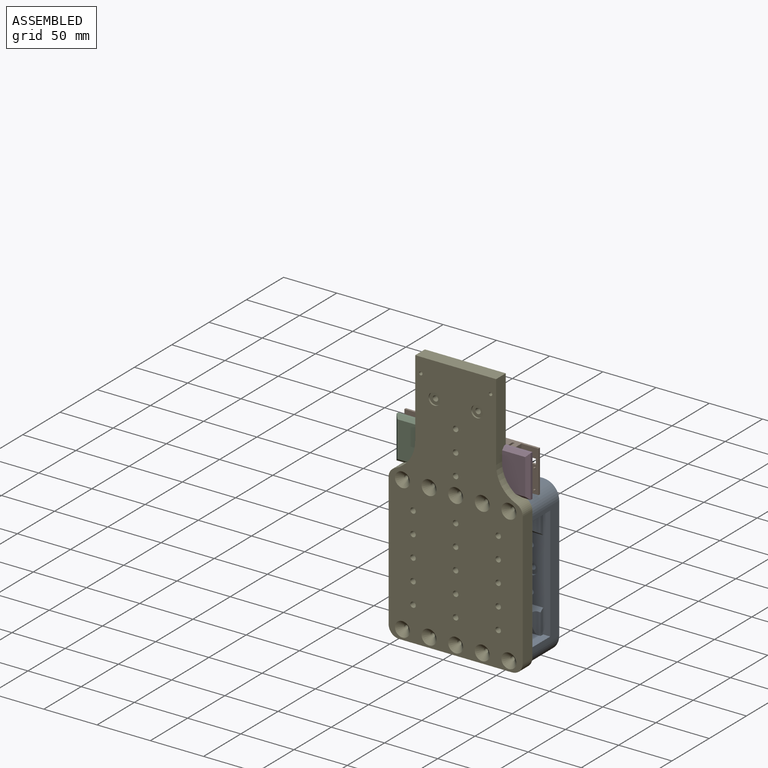
[diagram: assembled view]
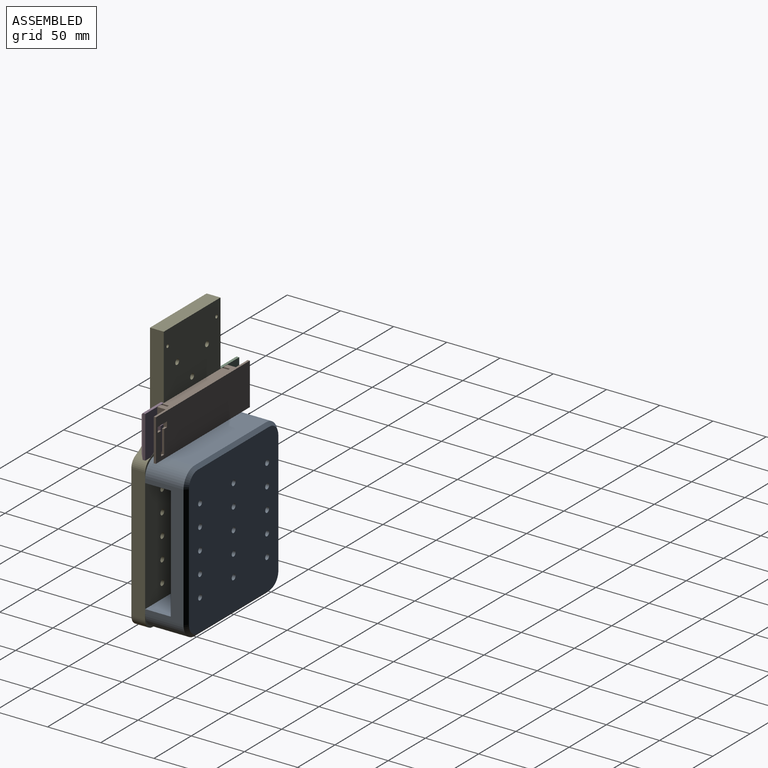
[diagram: assembled view, second angle]
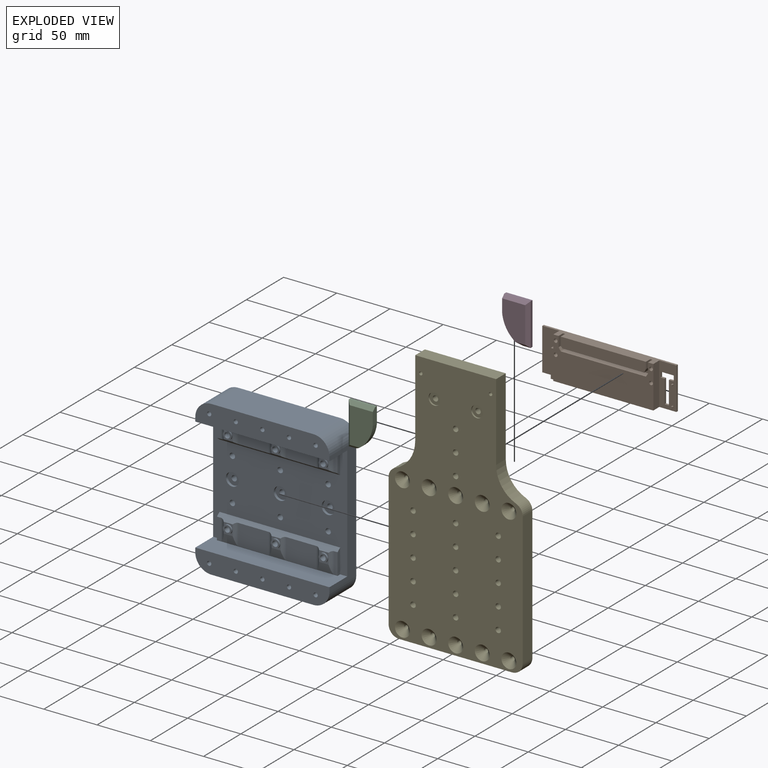
[diagram: exploded view]
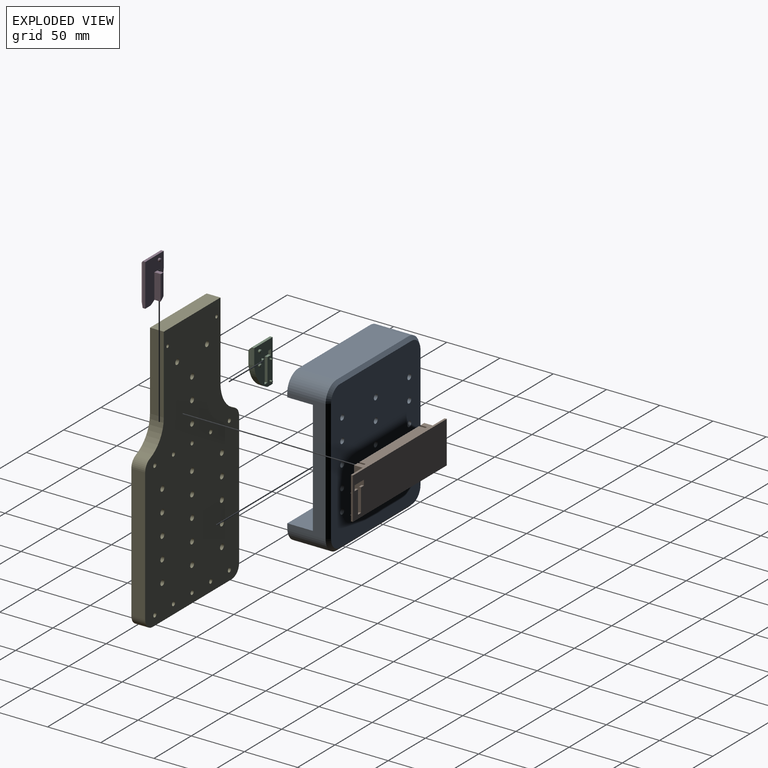
[diagram: exploded view, second angle]
ASSEMBLY  parts=5 mates=3
PART A: 109 faces, bbox 126x39x145 mm
  f0: cylinder r=2.55mm len=12.5mm, axis (0,1,0), area 200.3mm2, adj f41,f108
  f1: cylinder r=2.55mm len=12.5mm, axis (0,1,0), area 200.3mm2, adj f41,f106
  f2: cylinder r=2.55mm len=12.5mm, axis (0,1,0), area 200.3mm2, adj f41,f104
  f3: plane 9.42x8.94mm, normal (0,1,0), area 33.9mm2, adj f15,f16,f57,f78,f80
  f4: plane 9.42x8.62mm, normal (0,1,0), area 30.9mm2, adj f15,f16,f59,f77,f81
  f5: plane 9.42x8.62mm, normal (0,1,0), area 30.9mm2, adj f15,f16,f58,f79,f82
  f6: plane 10.08x8.62mm, normal (0,1,0), area 36.6mm2, adj f13,f14,f61,f73,f76
  f7: plane 10.08x8.94mm, normal (0,1,0), area 39.8mm2, adj f13,f14,f60,f71,f74
  f8: plane 10.08x8.62mm, normal (0,1,0), area 36.6mm2, adj f13,f14,f62,f72,f75
  f9: plane 22.77x3.5mm, normal (1,0,0), area 74.6mm2, adj f15,f16,f23,f24,f64
  f10: plane 22.77x3.5mm, normal (-1,0,0), area 74.6mm2, adj f15,f16,f23,f24,f65
  f11: plane 22.77x3.5mm, normal (1,0,0), area 75mm2, adj f13,f14,f24,f55,f68
  f12: plane 22.77x3.5mm, normal (-1,0,0), area 75mm2, adj f13,f14,f24,f55,f67
  f13: plane 113.34x8.46mm, normal (0,0.97,-0.24), area 318.5mm2, adj f6,f7,f8,f11,f12,f55,f67,f68
  f14: plane 113.34x5.5mm, normal (0,0.61,0.79), area 584.8mm2, adj f6,f7,f8,f11,f12,f24,f67,f68
  f15: plane 113.34x5.5mm, normal (0,0.62,-0.78), area 593.5mm2, adj f3,f4,f5,f9,f10,f24,f63,f64
  f16: plane 113.34x8.95mm, normal (0,0.97,0.25), area 417.6mm2, adj f3,f4,f5,f9,f10,f23,f63,f64
  f17: plane 8x8mm, normal (0,1,0), area 29.8mm2, adj f38,f60
  f18: plane 8x8mm, normal (0,1,0), area 29.8mm2, adj f35,f61
  f19: plane 8x8mm, normal (0,1,0), area 29.8mm2, adj f30,f62
  f20: plane 8x8mm, normal (0,1,0), area 29.8mm2, adj f32,f57
  f21: plane 8x8mm, normal (0,1,0), area 29.8mm2, adj f31,f58
  f22: plane 8x8mm, normal (0,1,0), area 29.8mm2, adj f40,f59
  f23: plane 126x24mm, normal (0,0,-1), area 2666.4mm2, adj f9,f10,f16,f24,f25,f27,f54
  f24: plane 126x107.02mm, normal (0,1,0), area 7849.3mm2, adj f9,f10,f11,f12,f14,f15,f23,f25
  f25: plane 115x36mm, normal (-1,0,0), area 1571.6mm2, adj f23,f24,f42,f45,f53,f54,f55,f56
  f26: plane 96x36mm, normal (0,0,-1), area 3456mm2, adj f42,f43,f49,f56
  f27: plane 115x36mm, normal (1,0,0), area 1571.6mm2, adj f23,f24,f43,f44,f46,f54,f55,f56
  f28: cylinder r=2.55mm len=15mm, axis (0,1,0), area 240.3mm2, adj f24,f41
  f29: cylinder r=2.55mm len=15mm, axis (0,1,0), area 240.3mm2, adj f24,f41
  f30: cylinder r=2.55mm len=22mm, axis (0,1,0), area 352.5mm2, adj f19,f41
  f31: cylinder r=2.55mm len=22mm, axis (0,1,0), area 352.5mm2, adj f21,f41
  f32: cylinder r=2.55mm len=22mm, axis (0,1,0), area 352.5mm2, adj f20,f41
  f33: cylinder r=2.55mm len=15mm, axis (0,1,0), area 240.3mm2, adj f24,f41
  f34: cylinder r=2.55mm len=15mm, axis (0,1,0), area 240.3mm2, adj f24,f41
  f35: cylinder r=2.55mm len=22mm, axis (0,1,0), area 352.5mm2, adj f18,f41
  f36: cylinder r=2.55mm len=15mm, axis (0,1,0), area 240.3mm2, adj f24,f41
  f37: cylinder r=2.55mm len=15mm, axis (0,1,0), area 240.3mm2, adj f24,f41
  f38: cylinder r=2.55mm len=22mm, axis (0,1,0), area 352.5mm2, adj f17,f41
  f39: plane 96x36mm, normal (0,0,1), area 3456mm2, adj f44,f45,f50,f54
  f40: cylinder r=2.55mm len=22mm, axis (0,1,0), area 352.5mm2, adj f22,f41
  f41: plane 139x120mm, normal (0,-1,0), area 16250mm2, adj f0,f1,f2,f28,f29,f30,f31,f32
  f42: cylinder r=15mm len=36mm, axis (0,-1,0), area 848.2mm2, adj f25,f26,f51,f56
  f43: cylinder r=15mm len=36mm, axis (0,1,0), area 848.2mm2, adj f26,f27,f47,f56
  f44: cylinder r=15mm len=36mm, axis (0,-1,0), area 848.2mm2, adj f27,f39,f48,f54
  f45: cylinder r=15mm len=36mm, axis (0,1,0), area 848.2mm2, adj f25,f39,f52,f54
  f46: plane 115x3mm, normal (0.71,-0.71,0), area 487.9mm2, adj f27,f41,f47,f48
  f47: cone r=12mm half-angle=45deg, axis (0,1,0), area 90mm2, adj f41,f43,f46,f49
  f48: cone r=12mm half-angle=45deg, axis (0,1,0), area 90mm2, adj f41,f44,f46,f50
  f49: plane 96x3mm, normal (0,-0.71,-0.71), area 407.3mm2, adj f26,f41,f47,f51
  f50: plane 96x3mm, normal (0,-0.71,0.71), area 407.3mm2, adj f39,f41,f48,f52
  f51: cone r=12mm half-angle=45deg, axis (0,1,0), area 90mm2, adj f41,f42,f49,f53
  f52: cone r=12mm half-angle=45deg, axis (0,1,0), area 90mm2, adj f41,f45,f50,f53
  f53: plane 115x3mm, normal (-0.71,-0.71,0), area 487.9mm2, adj f25,f41,f51,f52
  f54: plane 126x18.99mm, normal (0,1,0), area 2233.7mm2, adj f23,f25,f27,f39,f44,f45,f93,f95
  f55: plane 126x24mm, normal (0,0,1), area 2636.7mm2, adj f11,f12,f13,f24,f25,f27,f56
  f56: plane 126x18.99mm, normal (0,1,0), area 2233.7mm2, adj f25,f26,f27,f42,f43,f55,f83,f85
  f57: cylinder r=4mm len=8mm, axis (0,1,0), area 37.7mm2, adj f3,f20
  f58: cylinder r=4mm len=8mm, axis (0,1,0), area 37.7mm2, adj f5,f21
  f59: cylinder r=4mm len=8mm, axis (0,1,0), area 37.7mm2, adj f4,f22
  f60: cylinder r=4mm len=8mm, axis (0,1,0), area 37.7mm2, adj f7,f17
  f61: cylinder r=4mm len=8mm, axis (0,1,0), area 37.7mm2, adj f6,f18
  f62: cylinder r=4mm len=8mm, axis (0,1,0), area 37.7mm2, adj f8,f19
  f63: plane 28.27x18.65mm, normal (0,1,0), area 527.4mm2, adj f15,f16,f81,f82
  f64: plane 18.65x3.65mm, normal (0,1,0), area 68.2mm2, adj f9,f15,f16,f77
  f65: plane 18.65x3.08mm, normal (0,1,0), area 57.5mm2, adj f10,f15,f16,f78
  f66: plane 28.17x18.65mm, normal (0,1,0), area 525.4mm2, adj f15,f16,f79,f80
  f67: plane 19.74x3.08mm, normal (0,1,0), area 60.8mm2, adj f12,f13,f14,f71
  f68: plane 19.74x3.65mm, normal (0,1,0), area 72.1mm2, adj f11,f13,f14,f72
  f69: plane 28.17x19.74mm, normal (0,1,0), area 556mm2, adj f13,f14,f73,f74
  f70: plane 28.27x19.74mm, normal (0,1,0), area 558.1mm2, adj f13,f14,f75,f76
  f71: cylinder r=5mm len=19.74mm, axis (0,0,1), area 76.2mm2, adj f7,f13,f14,f67
  f72: cylinder r=5mm len=19.74mm, axis (0,0,1), area 76.2mm2, adj f8,f13,f14,f68
  f73: cylinder r=5mm len=19.74mm, axis (0,0,1), area 76.2mm2, adj f6,f13,f14,f69
  f74: cylinder r=5mm len=19.74mm, axis (0,0,1), area 76.2mm2, adj f7,f13,f14,f69
  f75: cylinder r=5mm len=19.74mm, axis (0,0,1), area 76.2mm2, adj f8,f13,f14,f70
  f76: cylinder r=5mm len=19.74mm, axis (0,0,1), area 76.2mm2, adj f6,f13,f14,f70
  f77: cylinder r=5mm len=18.65mm, axis (0,0,1), area 71.8mm2, adj f4,f15,f16,f64
  f78: cylinder r=5mm len=18.65mm, axis (0,0,1), area 71.8mm2, adj f3,f15,f16,f65
  f79: cylinder r=5mm len=18.65mm, axis (0,0,1), area 71.8mm2, adj f5,f15,f16,f66
  f80: cylinder r=5mm len=18.65mm, axis (0,0,1), area 71.8mm2, adj f3,f15,f16,f66
  f81: cylinder r=5mm len=18.65mm, axis (0,0,1), area 71.8mm2, adj f4,f15,f16,f63
  f82: cylinder r=5mm len=18.65mm, axis (0,0,1), area 71.8mm2, adj f5,f15,f16,f63
  f83: cylinder r=2mm len=30mm, axis (0,1,0), area 377mm2, adj f56,f84
  f84: plane 4x4mm, normal (0,1,0), area 12.6mm2, adj f83
  f85: cylinder r=2mm len=30mm, axis (0,1,0), area 377mm2, adj f56,f86
  f86: plane 4x4mm, normal (0,1,0), area 12.6mm2, adj f85
  f87: cylinder r=2mm len=30mm, axis (0,1,0), area 377mm2, adj f56,f88
  f88: plane 4x4mm, normal (0,1,0), area 12.6mm2, adj f87
  f89: cylinder r=2mm len=30mm, axis (0,1,0), area 377mm2, adj f56,f90
  f90: plane 4x4mm, normal (0,1,0), area 12.6mm2, adj f89
  f91: cylinder r=2mm len=30mm, axis (0,1,0), area 377mm2, adj f56,f92
  f92: plane 4x4mm, normal (0,1,0), area 12.6mm2, adj f91
  f93: cylinder r=2mm len=30mm, axis (0,1,0), area 377mm2, adj f54,f94
  f94: plane 4x4mm, normal (0,1,0), area 12.6mm2, adj f93
  f95: cylinder r=2mm len=30mm, axis (0,1,0), area 377mm2, adj f54,f96
  f96: plane 4x4mm, normal (0,1,0), area 12.6mm2, adj f95
  f97: cylinder r=2mm len=30mm, axis (0,1,0), area 377mm2, adj f54,f98
  f98: plane 4x4mm, normal (0,1,0), area 12.6mm2, adj f97
  f99: cylinder r=2mm len=30mm, axis (0,1,0), area 377mm2, adj f54,f100
  f100: plane 4x4mm, normal (0,1,0), area 12.6mm2, adj f99
  f101: cylinder r=2mm len=30mm, axis (0,1,0), area 377mm2, adj f54,f102
  f102: plane 4x4mm, normal (0,1,0), area 12.6mm2, adj f101
  f103: cylinder r=6.1mm len=12.2mm, axis (0,1,0), area 95.8mm2, adj f24,f104
  f104: plane 12.2x12.2mm, normal (0,1,0), area 96.5mm2, adj f2,f103
  f105: cylinder r=6.1mm len=12.2mm, axis (0,1,0), area 95.8mm2, adj f24,f106
  f106: plane 12.2x12.2mm, normal (0,1,0), area 96.5mm2, adj f1,f105
  f107: cylinder r=6.1mm len=12.2mm, axis (0,1,0), area 95.8mm2, adj f24,f108
  f108: plane 12.2x12.2mm, normal (0,1,0), area 96.5mm2, adj f0,f107
PART B: 45 faces, bbox 10x126x39.5 mm
  f0: plane 94x39.5mm, normal (1,0,0), area 2626.1mm2, adj f1,f4,f8,f22,f26,f27,f33,f34
  f1: plane 126x10mm, normal (0,0,1), area 980mm2, adj f0,f2,f3,f4,f5,f6,f7,f9
  f2: plane 80x9.55mm, normal (1,0,0), area 760.2mm2, adj f1,f28,f29,f30,f31,f32
  f3: plane 39.5x16mm, normal (1,0,0), area 532.4mm2, adj f1,f4,f7,f8,f23,f24
  f4: plane 39.5x8mm, normal (0,-1,0), area 161.4mm2, adj f0,f1,f3,f8,f23,f25
  f5: plane 39.5x16mm, normal (1,0,0), area 479.9mm2, adj f1,f8,f9,f10,f11,f12,f13,f14
  f6: plane 126x39.5mm, normal (-1,0,0), area 4828.4mm2, adj f1,f7,f8,f9,f10,f11,f12,f13
  f7: plane 39.5x2mm, normal (0,-1,0), area 79mm2, adj f1,f3,f6,f8
  f8: plane 126x10mm, normal (0,0,-1), area 1026.4mm2, adj f0,f3,f4,f5,f6,f7,f9,f22
  f9: plane 39.5x2mm, normal (0,1,0), area 79mm2, adj f1,f5,f6,f8
  f10: plane 21.68x2mm, normal (0,1,0), area 43.4mm2, adj f5,f6,f11,f17
  f11: plane 4x2mm, normal (0,0,1), area 8mm2, adj f5,f6,f10,f12
  f12: plane 21.68x2mm, normal (0,-1,0), area 43.4mm2, adj f5,f6,f11,f13
  f13: plane 4.59x2mm, normal (0,0,1), area 9.2mm2, adj f5,f6,f12,f14
  f14: plane 5x2mm, normal (0,-1,0), area 10mm2, adj f5,f6,f13,f15
  f15: plane 12.37x2mm, normal (0,0,-1), area 24.7mm2, adj f5,f6,f14,f16
  f16: plane 5x2mm, normal (0,1,0), area 10mm2, adj f5,f6,f15,f17
  f17: plane 3.78x2mm, normal (0,0,1), area 7.6mm2, adj f5,f6,f10,f16
  f18: cylinder r=0.75mm len=2mm, axis (-1,0,0), area 9.4mm2, adj f5,f19
  f19: plane 1.5x1.5mm, normal (1,0,0), area 1.8mm2, adj f18
  f20: cylinder r=0.75mm len=2mm, axis (-1,0,0), area 9.4mm2, adj f5,f21
  f21: plane 1.5x1.5mm, normal (1,0,0), area 1.8mm2, adj f20
  f22: plane 39.5x8mm, normal (0,1,0), area 316mm2, adj f0,f1,f5,f8
  f23: plane 5.9x3.8mm, normal (0,0,1), area 22.4mm2, adj f3,f4,f24,f25
  f24: plane 26.2x5.9mm, normal (0,-1,0), area 154.6mm2, adj f3,f8,f23,f25
  f25: plane 26.2x3.8mm, normal (1,0,0), area 99.6mm2, adj f4,f8,f23,f24
  f26: plane 6x3mm, normal (0,-0.83,0.55), area 21.6mm2, adj f0,f27,f35,f36
  f27: plane 9.55x6mm, normal (0,-1,0), area 57.3mm2, adj f0,f1,f26,f36
  f28: plane 6.28x6mm, normal (0,1,0), area 37.7mm2, adj f1,f2,f29,f36
  f29: plane 6x3.28mm, normal (0,0.89,-0.45), area 22mm2, adj f2,f28,f30,f36
  f30: plane 76.85x6mm, normal (0,0,-1), area 461.1mm2, adj f2,f29,f31,f36
  f31: plane 6x1.72mm, normal (0,-0.76,-0.65), area 13.7mm2, adj f2,f30,f32,f36
  f32: plane 7.83x6mm, normal (0,-1,0), area 47mm2, adj f1,f2,f31,f36
  f33: plane 9.55x6mm, normal (0,1,0), area 57.3mm2, adj f0,f1,f34,f36
  f34: plane 6x3mm, normal (0,0.83,0.55), area 21.6mm2, adj f0,f33,f35,f36
  f35: plane 80x6mm, normal (0,0,1), area 480mm2, adj f0,f26,f34,f36
  f36: plane 84x12.55mm, normal (1,0,0), area 288.2mm2, adj f1,f26,f27,f28,f29,f30,f31,f32
  f37: cylinder r=1.75mm len=4mm, axis (1,0,0), area 44mm2, adj f0,f38
  f38: plane 3.5x3.5mm, normal (1,0,0), area 9.6mm2, adj f37
  f39: cylinder r=1.75mm len=4mm, axis (1,0,0), area 44mm2, adj f0,f40
  f40: plane 3.5x3.5mm, normal (1,0,0), area 9.6mm2, adj f39
  f41: cylinder r=1.75mm len=4mm, axis (1,0,0), area 44mm2, adj f0,f42
  f42: plane 3.5x3.5mm, normal (1,0,0), area 9.6mm2, adj f41
  f43: cylinder r=1.75mm len=4mm, axis (1,0,0), area 44mm2, adj f0,f44
  f44: plane 3.5x3.5mm, normal (1,0,0), area 9.6mm2, adj f43
PART C: 29 faces, bbox 7.5x24.7x39.7 mm
  f0: cylinder r=30mm len=24.84mm, axis (-1,0,0), area 166.4mm2, adj f1,f2,f5,f6,f7
  f1: plane 14.87x5.5mm, normal (0,1,0), area 77.3mm2, adj f0,f2,f3,f6,f8
  f2: plane 33.72x21.72mm, normal (1,0,0), area 642.9mm2, adj f0,f1,f3,f4,f5
  f3: plane 24.72x3mm, normal (0.71,0,0.71), area 98.5mm2, adj f1,f2,f4,f8
  f4: plane 39.72x3mm, normal (0.71,-0.71,0), area 155.8mm2, adj f2,f3,f5,f9
  f5: plane 12.26x3mm, normal (0.71,0,-0.71), area 35.4mm2, adj f0,f2,f4,f7
  f6: plane 39.72x24.72mm, normal (-1,0,0), area 679.6mm2, adj f0,f1,f7,f8,f9,f10,f11,f12
  f7: plane 7x2.5mm, normal (0,0,-1), area 17.5mm2, adj f0,f5,f6,f9
  f8: plane 24.72x2.5mm, normal (0,0,1), area 61.8mm2, adj f1,f3,f6,f9
  f9: plane 39.72x2.5mm, normal (0,-1,0), area 99.3mm2, adj f4,f6,f7,f8
  f10: plane 5.02x2.5mm, normal (0,1,0), area 12.6mm2, adj f6,f11,f17,f28
  f11: plane 12.38x2.5mm, normal (0,0,-1), area 31mm2, adj f6,f10,f12,f28
  f12: plane 5.02x2.5mm, normal (0,-1,0), area 12.6mm2, adj f6,f11,f13,f28
  f13: plane 3.77x2.5mm, normal (0,0,1), area 9.4mm2, adj f6,f12,f14,f28
  f14: plane 21.71x2.5mm, normal (0,-1,0), area 54.3mm2, adj f6,f13,f15,f28
  f15: plane 4.05x2.5mm, normal (0,0,1), area 10.1mm2, adj f6,f14,f16,f28
  f16: plane 21.71x2.5mm, normal (0,1,0), area 54.3mm2, adj f6,f15,f17,f28
  f17: plane 4.56x2.5mm, normal (0,0,1), area 11.4mm2, adj f6,f10,f16,f28
  f18: cylinder r=0.74mm len=2mm, axis (1,0,0), area 9.4mm2, adj f6,f19
  f19: plane 1.49x1.49mm, normal (-1,0,0), area 1.7mm2, adj f18
  f20: cylinder r=0.79mm len=2mm, axis (1,0,0), area 9.9mm2, adj f6,f21
  f21: plane 1.58x1.58mm, normal (-1,0,0), area 2mm2, adj f20
  f22: cylinder r=1.5mm len=3mm, axis (1,0,0), area 14.1mm2, adj f6,f27
  f23: plane 2x2mm, normal (-1,0,0), area 3.1mm2, adj f27
  f24: cylinder r=1.5mm len=3mm, axis (1,0,0), area 14.1mm2, adj f6,f26
  f25: plane 2x2mm, normal (-1,0,0), area 3.1mm2, adj f26
  f26: torus R=1mm, axis (-1,0,0), area 6.5mm2, adj f24,f25
  f27: torus R=1mm, axis (-1,0,0), area 6.5mm2, adj f22,f23
  f28: plane 26.74x12.38mm, normal (-1,0,0), area 150.2mm2, adj f10,f11,f12,f13,f14,f15,f16,f17
PART D: 20 faces, bbox 11.4x24.7x39.7 mm
  f0: cylinder r=30mm len=24.84mm, axis (-1,0,0), area 195.6mm2, adj f1,f2,f5,f6,f8,f11,f12,f13
  f1: plane 14.87x5.5mm, normal (0,-1,0), area 77.3mm2, adj f0,f2,f3,f6,f7
  f2: plane 33.72x21.72mm, normal (1,0,0), area 642.9mm2, adj f0,f1,f3,f4,f5
  f3: plane 24.72x3mm, normal (0.71,0,0.71), area 98.5mm2, adj f1,f2,f4,f7
  f4: plane 39.72x3mm, normal (0.71,0.71,0), area 155.8mm2, adj f2,f3,f5,f9
  f5: plane 12.26x3mm, normal (0.71,0,-0.71), area 35.4mm2, adj f0,f2,f4,f8
  f6: plane 39.72x24.72mm, normal (-1,0,0), area 750.8mm2, adj f0,f1,f7,f8,f9,f10,f11,f12
  f7: plane 24.72x2.5mm, normal (0,0,1), area 61.8mm2, adj f1,f3,f6,f9
  f8: plane 7x2.5mm, normal (0,0,-1), area 17.5mm2, adj f0,f5,f6,f9
  f9: plane 39.72x2.5mm, normal (0,1,0), area 99.3mm2, adj f4,f6,f7,f8
  f10: plane 5.9x3.77mm, normal (0,0,1), area 22.3mm2, adj f6,f11,f12,f13
  f11: plane 23.42x5.9mm, normal (0,1,0), area 138.2mm2, adj f0,f6,f10,f13
  f12: plane 20.24x5.9mm, normal (0,-1,0), area 119.4mm2, adj f0,f6,f10,f13
  f13: plane 23.42x3.77mm, normal (-1,0,0), area 82.7mm2, adj f0,f10,f11,f12
  f14: cylinder r=1.5mm len=3mm, axis (1,0,0), area 14.1mm2, adj f6,f19
  f15: plane 2x2mm, normal (-1,0,0), area 3.1mm2, adj f19
  f16: cylinder r=1.5mm len=3mm, axis (1,0,0), area 14.1mm2, adj f6,f18
  f17: plane 2x2mm, normal (-1,0,0), area 3.1mm2, adj f18
  f18: cone r=1mm half-angle=45deg, axis (1,0,0), area 5.6mm2, adj f16,f17
  f19: cone r=1mm half-angle=45deg, axis (1,0,0), area 5.6mm2, adj f14,f15
PART E: 60 faces, bbox 126x13x245 mm
  f0: cylinder r=2.55mm len=11.5mm, axis (0,1,0), area 184.3mm2, adj f27,f57
  f1: cylinder r=2.55mm len=11.5mm, axis (0,1,0), area 184.3mm2, adj f27,f55
  f2: plane 106x13mm, normal (0,0,-1), area 1378mm2, adj f26,f27,f28,f29
  f3: plane 125x13mm, normal (1,0,0), area 1625mm2, adj f26,f27,f28,f30
  f4: plane 72.92x13mm, normal (1,0,0), area 947.9mm2, adj f5,f26,f27,f32
  f5: plane 76x13mm, normal (0,0,1), area 988mm2, adj f4,f6,f26,f27
  f6: plane 72.92x13mm, normal (-1,0,0), area 947.9mm2, adj f5,f26,f27,f33
  f7: cylinder r=2.55mm len=13mm, axis (0,1,0), area 208.3mm2, adj f26,f27
  f8: cylinder r=2.55mm len=13mm, axis (0,1,0), area 208.3mm2, adj f26,f27
  f9: cylinder r=2.55mm len=13mm, axis (0,1,0), area 208.3mm2, adj f26,f27
  f10: plane 125x13mm, normal (-1,0,0), area 1625mm2, adj f26,f27,f29,f31
  f11: cylinder r=2.55mm len=13mm, axis (0,1,0), area 208.3mm2, adj f26,f27
  f12: cylinder r=2.55mm len=13mm, axis (0,1,0), area 208.3mm2, adj f26,f27
  f13: cylinder r=2.55mm len=13mm, axis (0,1,0), area 208.3mm2, adj f26,f27
  f14: cylinder r=2.55mm len=13mm, axis (0,1,0), area 208.3mm2, adj f26,f27
  f15: cylinder r=2.55mm len=13mm, axis (0,1,0), area 208.3mm2, adj f26,f27
  f16: cylinder r=2.55mm len=13mm, axis (0,1,0), area 208.3mm2, adj f26,f27
  f17: cylinder r=2.55mm len=13mm, axis (0,1,0), area 208.3mm2, adj f26,f27
  f18: cylinder r=2.55mm len=13mm, axis (0,1,0), area 208.3mm2, adj f26,f27
  f19: cylinder r=2.55mm len=13mm, axis (0,1,0), area 208.3mm2, adj f26,f27
  f20: cylinder r=2.55mm len=13mm, axis (0,1,0), area 208.3mm2, adj f26,f27
  f21: cylinder r=2.55mm len=13mm, axis (0,1,0), area 208.3mm2, adj f26,f27
  f22: cylinder r=2.55mm len=13mm, axis (0,1,0), area 208.3mm2, adj f26,f27
  f23: cylinder r=2.55mm len=13mm, axis (0,1,0), area 208.3mm2, adj f26,f27
  f24: cylinder r=2.55mm len=13mm, axis (0,1,0), area 208.3mm2, adj f26,f27
  f25: cylinder r=2.55mm len=13mm, axis (0,1,0), area 208.3mm2, adj f26,f27
  f26: plane 245x126mm, normal (0,-1,0), area 23933.4mm2, adj f2,f3,f4,f5,f6,f7,f8,f9
  f27: plane 245x126mm, normal (0,1,0), area 25496.3mm2, adj f0,f1,f2,f3,f4,f5,f6,f7
  f28: cylinder r=10mm len=13mm, axis (0,1,0), area 204.2mm2, adj f2,f3,f26,f27
  f29: cylinder r=10mm len=13mm, axis (0,-1,0), area 204.2mm2, adj f2,f10,f26,f27
  f30: cylinder r=10mm len=13mm, axis (0,1,0), area 154.2mm2, adj f3,f26,f27,f32
  f31: cylinder r=10mm len=13mm, axis (0,-1,0), area 154.2mm2, adj f10,f26,f27,f33
  f32: cylinder r=30mm len=27.81mm, axis (0,1,0), area 462.7mm2, adj f4,f26,f27,f30
  f33: cylinder r=30mm len=27.81mm, axis (0,-1,0), area 462.7mm2, adj f6,f26,f27,f31
  f34: cylinder r=2mm len=8mm, axis (0,1,0), area 100.5mm2, adj f27,f53
  f35: cylinder r=2mm len=8mm, axis (0,1,0), area 100.5mm2, adj f27,f52
  f36: cylinder r=2mm len=8mm, axis (0,1,0), area 100.5mm2, adj f27,f51
  f37: cylinder r=2mm len=8mm, axis (0,1,0), area 100.5mm2, adj f27,f50
  f38: cylinder r=2mm len=8mm, axis (0,1,0), area 100.5mm2, adj f27,f49
  f39: cylinder r=2mm len=8mm, axis (0,1,0), area 100.5mm2, adj f27,f48
  f40: cylinder r=2mm len=8mm, axis (0,1,0), area 100.5mm2, adj f27,f47
  f41: cylinder r=2mm len=8mm, axis (0,1,0), area 100.5mm2, adj f27,f46
  f42: cylinder r=2mm len=8mm, axis (0,1,0), area 100.5mm2, adj f27,f45
  f43: cylinder r=2mm len=8mm, axis (0,1,0), area 100.5mm2, adj f27,f44
  f44: cone r=2mm half-angle=45deg, axis (0,-1,0), area 199.9mm2, adj f26,f43
  f45: cone r=2mm half-angle=45deg, axis (0,-1,0), area 199.9mm2, adj f26,f42
  f46: cone r=2mm half-angle=45deg, axis (0,-1,0), area 199.9mm2, adj f26,f41
  f47: cone r=2mm half-angle=45deg, axis (0,-1,0), area 199.9mm2, adj f26,f40
  f48: cone r=2mm half-angle=45deg, axis (0,-1,0), area 199.9mm2, adj f26,f39
  f49: cone r=2mm half-angle=45deg, axis (0,-1,0), area 199.9mm2, adj f26,f38
  f50: cone r=2mm half-angle=45deg, axis (0,-1,0), area 199.9mm2, adj f26,f37
  f51: cone r=2mm half-angle=45deg, axis (0,-1,0), area 199.9mm2, adj f26,f36
  f52: cone r=2mm half-angle=45deg, axis (0,-1,0), area 199.9mm2, adj f26,f35
  f53: cone r=2mm half-angle=45deg, axis (0,-1,0), area 199.9mm2, adj f26,f34
  f54: cylinder r=5.5mm len=11mm, axis (0,-1,0), area 51.8mm2, adj f26,f55
  f55: plane 11x11mm, normal (0,-1,0), area 74.6mm2, adj f1,f54
  f56: cylinder r=5.5mm len=11mm, axis (0,-1,0), area 51.8mm2, adj f26,f57
  f57: plane 11x11mm, normal (0,-1,0), area 74.6mm2, adj f0,f56
  f58: cylinder r=1.6mm len=13mm, axis (0,-1,0), area 130.7mm2, adj f26,f27
  f59: cylinder r=1.6mm len=13mm, axis (0,-1,0), area 130.7mm2, adj f26,f27
PLACE A rot(axis=(0,0,1),180deg) t=(-28.04,41.09,-36.34)mm
PLACE B rot(axis=(0,0,-1),90deg) t=(-104.14,27.22,121.8)mm
PLACE C rot(axis=(0,0,-1),90deg) t=(-104.12,27.22,121.8)mm
PLACE D rot(axis=(0,0,-1),90deg) t=(-104.17,27.22,121.8)mm
PLACE E t=(-154.04,17.09,-36.34)mm
MATE fastened C.f22 <-> B.f43  axis (0,1,0) through (-135.83,17.22,143.44)mm
MATE fastened D.f14 <-> B.f37  axis (0,1,0) through (-46.23,17.22,143.44)mm
MATE fastened A.f93 <-> E.f39  axis (0,-1,0) through (-141.04,17.09,99.66)mm
